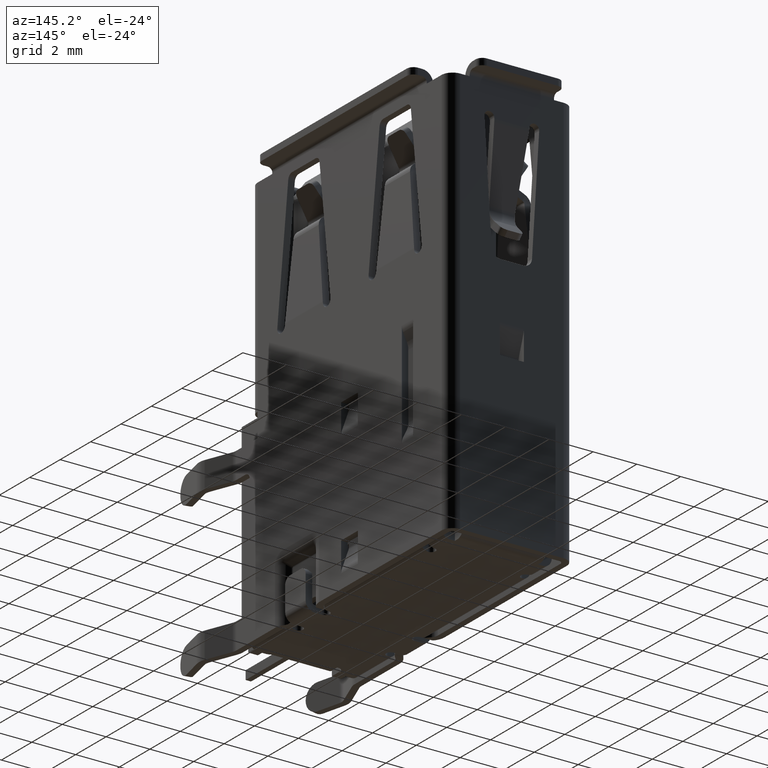
[diagram: clean part render]
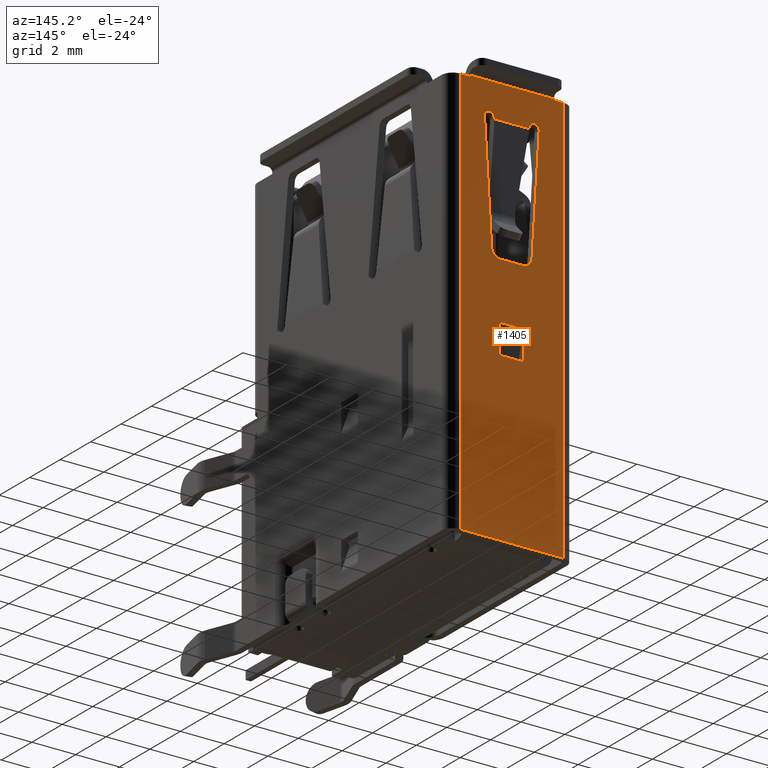
[diagram: same view with one face highlighted and labeled with its STEP entity id]
A machine part, auxiliary view. The second image highlights one B-rep face of the part: STEP entity #1405.
In plain terms, the highlighted planar face has unit normal (0, 1, 0).
Its self-contained STEP definition (entity closure, byte-faithful):
#413 = CARTESIAN_POINT ( 'NONE',  ( -17.28874646170218554, 6.550000000000000711, -2.059579684895092022 ) ) ;
#924 = LINE ( 'NONE', #15795, #44672 ) ;
#1295 = DIRECTION ( 'NONE',  ( 1.000000000000000000, 0.0000000000000000000, -0.0000000000000000000 ) ) ;
#1379 = AXIS2_PLACEMENT_3D ( 'NONE', #2101, #42379, #34979 ) ;
#1382 = EDGE_CURVE ( 'NONE', #43991, #43664, #44827, .T. ) ;
#1405 = ADVANCED_FACE ( 'NONE', ( #46320, #21565, #29012 ), #31924, .T. ) ;
#1706 = LINE ( 'NONE', #42003, #1767 ) ;
#1767 = VECTOR ( 'NONE', #9638, 1000.000000000000000 ) ;
#2101 = CARTESIAN_POINT ( 'NONE',  ( -11.94999999999999929, 6.550000000000000711, -3.383734963999999845 ) ) ;
#2831 = CARTESIAN_POINT ( 'NONE',  ( -18.69999999826666581, 6.550000000000000711, -0.4999999999689500041 ) ) ;
#2899 = CARTESIAN_POINT ( 'NONE',  ( -17.23915316305506096, 6.550000000000000711, -3.657384770222686488 ) ) ;
#2987 = EDGE_CURVE ( 'NONE', #38281, #17774, #47437, .T. ) ;
#3538 = DIRECTION ( 'NONE',  ( -0.9981319991309048900, 0.0000000000000000000, -0.06109429033013952931 ) ) ;
#3712 = EDGE_CURVE ( 'NONE', #20419, #13761, #33448, .T. ) ;
#4097 = ORIENTED_EDGE ( 'NONE', *, *, #29364, .T. ) ;
#4382 = VERTEX_POINT ( 'NONE', #4787 ) ;
#4787 = CARTESIAN_POINT ( 'NONE',  ( -11.55000000000000071, 6.550000000000000711, -3.383734963826749986 ) ) ;
#5453 = AXIS2_PLACEMENT_3D ( 'NONE', #47025, #39800, #36217 ) ;
#6378 = VERTEX_POINT ( 'NONE', #13318 ) ;
#6996 = ORIENTED_EDGE ( 'NONE', *, *, #1382, .T. ) ;
#7220 = LINE ( 'NONE', #29527, #42000 ) ;
#7386 = CARTESIAN_POINT ( 'NONE',  ( -11.55000000000000071, 6.550000000000000711, -2.860000000000000764 ) ) ;
#7470 = AXIS2_PLACEMENT_3D ( 'NONE', #20321, #8818, #45272 ) ;
#7630 = DIRECTION ( 'NONE',  ( -0.0000000000000000000, 0.0000000000000000000, -1.000000000000000000 ) ) ;
#7678 = EDGE_CURVE ( 'NONE', #4382, #43991, #15046, .T. ) ;
#7832 = EDGE_CURVE ( 'NONE', #19518, #17553, #38059, .T. ) ;
#7912 = CARTESIAN_POINT ( 'NONE',  ( -11.92556216517189860, 6.550000000000000711, -3.782987756387264255 ) ) ;
#8223 = CARTESIAN_POINT ( 'NONE',  ( -17.28874621537276113, 6.550000000000000711, -3.660420300198656829 ) ) ;
#8272 = LINE ( 'NONE', #37763, #11547 ) ;
#8364 = LINE ( 'NONE', #29970, #11912 ) ;
#8481 = VERTEX_POINT ( 'NONE', #24770 ) ;
#8646 = ORIENTED_EDGE ( 'NONE', *, *, #28510, .T. ) ;
#8818 = DIRECTION ( 'NONE',  ( -0.0000000000000000000, -1.000000000000000000, -0.0000000000000000000 ) ) ;
#9638 = DIRECTION ( 'NONE',  ( -1.000000000000000000, -0.0000000000000000000, 0.0000000000000000000 ) ) ;
#9895 = EDGE_CURVE ( 'NONE', #42435, #8481, #42726, .T. ) ;
#9989 = VERTEX_POINT ( 'NONE', #10806 ) ;
#10078 = CARTESIAN_POINT ( 'NONE',  ( -17.26125371788325680, 6.550000000000000711, -4.109579695991167014 ) ) ;
#10585 = DIRECTION ( 'NONE',  ( -0.9981319811049911284, 0.0000000000000000000, 0.06109458482898021819 ) ) ;
#10806 = CARTESIAN_POINT ( 'NONE',  ( -8.950983718586000393, 6.550000000000000711, -2.309999999879937427 ) ) ;
#11436 = ORIENTED_EDGE ( 'NONE', *, *, #9895, .T. ) ;
#11488 = EDGE_CURVE ( 'NONE', #43215, #42435, #40187, .T. ) ;
#11498 = DIRECTION ( 'NONE',  ( 1.000000000000000000, 0.0000000000000000000, -0.0000000000000000000 ) ) ;
#11547 = VECTOR ( 'NONE', #1295, 1000.000000000000000 ) ;
#11759 = CARTESIAN_POINT ( 'NONE',  ( 0.0000000000000000000, 6.550000000000000711, -2.860000000000000764 ) ) ;
#11912 = VECTOR ( 'NONE', #19166, 1000.000000000000000 ) ;
#11938 = ORIENTED_EDGE ( 'NONE', *, *, #40040, .T. ) ;
#12601 = ORIENTED_EDGE ( 'NONE', *, *, #38320, .T. ) ;
#13197 = DIRECTION ( 'NONE',  ( -0.0000000000000000000, -1.000000000000000000, -0.0000000000000000000 ) ) ;
#13318 = CARTESIAN_POINT ( 'NONE',  ( -17.26125371693493094, 6.550000000000000711, -1.610420304272583758 ) ) ;
#13356 = VECTOR ( 'NONE', #7630, 1000.000000000000000 ) ;
#13438 = ORIENTED_EDGE ( 'NONE', *, *, #36271, .F. ) ;
#13628 = CARTESIAN_POINT ( 'NONE',  ( -18.69999999843999916, 6.550000000000000711, -5.220000000187999589 ) ) ;
#13710 = CARTESIAN_POINT ( 'NONE',  ( -17.28874628362309096, 6.550000000000000711, -2.059579695689964129 ) ) ;
#13761 = VERTEX_POINT ( 'NONE', #10078 ) ;
#13857 = EDGE_CURVE ( 'NONE', #6378, #43215, #13889, .T. ) ;
#13889 = CIRCLE ( 'NONE', #5453, 0.2249999999999999500 ) ;
#14380 = DIRECTION ( 'NONE',  ( 0.0000000000000000000, -0.0000000000000000000, 1.000000000000000000 ) ) ;
#14638 = VECTOR ( 'NONE', #33539, 1000.000000000000000 ) ;
#14697 = CARTESIAN_POINT ( 'NONE',  ( -18.75000000001000089, 6.550000000000000711, -0.9350000000799998379 ) ) ;
#14746 = ORIENTED_EDGE ( 'NONE', *, *, #7832, .T. ) ;
#15046 = LINE ( 'NONE', #7386, #14638 ) ;
#15325 = CARTESIAN_POINT ( 'NONE',  ( -7.599999999566041886, 6.550000000000000711, -2.309999999839875251 ) ) ;
#15469 = ORIENTED_EDGE ( 'NONE', *, *, #26775, .T. ) ;
#15795 = CARTESIAN_POINT ( 'NONE',  ( -9.375000000000000000, 6.550000000000000711, -0.9350000000799998379 ) ) ;
#16337 = ORIENTED_EDGE ( 'NONE', *, *, #13857, .T. ) ;
#16412 = DIRECTION ( 'NONE',  ( -1.000000000000000000, -0.0000000000000000000, 0.0000000000000000000 ) ) ;
#16462 = VECTOR ( 'NONE', #23114, 1000.000000000000000 ) ;
#16771 = CARTESIAN_POINT ( 'NONE',  ( -9.375000000000000000, 6.550000000000000711, -2.309999999839875251 ) ) ;
#16991 = EDGE_CURVE ( 'NONE', #17682, #23793, #17394, .T. ) ;
#17274 = VERTEX_POINT ( 'NONE', #38633 ) ;
#17394 = LINE ( 'NONE', #36750, #18597 ) ;
#17553 = VERTEX_POINT ( 'NONE', #15325 ) ;
#17682 = VERTEX_POINT ( 'NONE', #35936 ) ;
#17773 = LINE ( 'NONE', #31951, #19921 ) ;
#17774 = VERTEX_POINT ( 'NONE', #2831 ) ;
#18241 = EDGE_CURVE ( 'NONE', #13761, #37857, #19988, .T. ) ;
#18597 = VECTOR ( 'NONE', #24809, 1000.000000000000000 ) ;
#19166 = DIRECTION ( 'NONE',  ( 0.0000000000000000000, -0.0000000000000000000, 1.000000000000000000 ) ) ;
#19364 = CARTESIAN_POINT ( 'NONE',  ( -17.23915316684813348, 6.550000000000000711, -2.860000000000000764 ) ) ;
#19518 = VERTEX_POINT ( 'NONE', #36010 ) ;
#19556 = AXIS2_PLACEMENT_3D ( 'NONE', #46072, #13197, #27835 ) ;
#19921 = VECTOR ( 'NONE', #10585, 1000.000000000000227 ) ;
#19988 = LINE ( 'NONE', #31507, #33273 ) ;
#20084 = EDGE_CURVE ( 'NONE', #42768, #29535, #24071, .T. ) ;
#20321 = CARTESIAN_POINT ( 'NONE',  ( -17.27499999999999858, 6.550000000000000711, -3.884999999999999787 ) ) ;
#20419 = VERTEX_POINT ( 'NONE', #8223 ) ;
#21019 = DIRECTION ( 'NONE',  ( 0.0000000000000000000, 0.0000000000000000000, 1.000000000000000000 ) ) ;
#21565 = FACE_BOUND ( 'NONE', #32557, .T. ) ;
#22063 = CARTESIAN_POINT ( 'NONE',  ( -11.55000000000000071, 6.550000000000000711, -2.336265036540000395 ) ) ;
#22545 = DIRECTION ( 'NONE',  ( 1.000000000000000000, 0.0000000000000000000, -0.0000000000000000000 ) ) ;
#22633 = VECTOR ( 'NONE', #16412, 1000.000000000000000 ) ;
#22669 = EDGE_LOOP ( 'NONE', ( #23246, #4097, #46713, #29397, #15469, #43518, #12601, #13438 ) ) ;
#22708 = CARTESIAN_POINT ( 'NONE',  ( -7.599999999479250867, 6.550000000000000711, -2.860000000000000764 ) ) ;
#23114 = DIRECTION ( 'NONE',  ( -0.0000000000000000000, 0.0000000000000000000, -1.000000000000000000 ) ) ;
#23231 = CARTESIAN_POINT ( 'NONE',  ( -17.27499999999999858, 6.550000000000000711, -1.610000000000000098 ) ) ;
#23246 = ORIENTED_EDGE ( 'NONE', *, *, #20084, .T. ) ;
#23793 = VERTEX_POINT ( 'NONE', #14697 ) ;
#24071 = LINE ( 'NONE', #45203, #22633 ) ;
#24457 = EDGE_CURVE ( 'NONE', #17553, #9989, #31658, .T. ) ;
#24770 = CARTESIAN_POINT ( 'NONE',  ( -17.23915316818497701, 6.550000000000000711, -2.062615316356586792 ) ) ;
#24809 = DIRECTION ( 'NONE',  ( 0.0000000000000000000, -0.0000000000000000000, 1.000000000000000000 ) ) ;
#25323 = EDGE_CURVE ( 'NONE', #17274, #19518, #7220, .T. ) ;
#25468 = ORIENTED_EDGE ( 'NONE', *, *, #24457, .T. ) ;
#25852 = LINE ( 'NONE', #19364, #13356 ) ;
#26296 = ORIENTED_EDGE ( 'NONE', *, *, #11488, .T. ) ;
#26317 = DIRECTION ( 'NONE',  ( 0.0000000000000000000, -0.0000000000000000000, 1.000000000000000000 ) ) ;
#26775 = EDGE_CURVE ( 'NONE', #23793, #38281, #924, .T. ) ;
#27006 = EDGE_CURVE ( 'NONE', #41877, #20419, #32098, .T. ) ;
#27239 = CARTESIAN_POINT ( 'NONE',  ( -18.69999999884444719, 6.550000000025000269, -4.784999999975307894 ) ) ;
#27750 = ORIENTED_EDGE ( 'NONE', *, *, #18241, .T. ) ;
#27835 = DIRECTION ( 'NONE',  ( 4.336808689942017736E-15, 0.0000000000000000000, 1.000000000000000000 ) ) ;
#28235 = CARTESIAN_POINT ( 'NONE',  ( -17.27499999999999858, 6.550000000000000711, -1.834999999999999964 ) ) ;
#28333 = DIRECTION ( 'NONE',  ( 0.9981318836651256188, 0.0000000000000000000, -0.06109617673069272364 ) ) ;
#28488 = CARTESIAN_POINT ( 'NONE',  ( -17.23915316385122409, 6.550000000000000711, -3.657384777551747401 ) ) ;
#28510 = EDGE_CURVE ( 'NONE', #9989, #17274, #41346, .T. ) ;
#28675 = CARTESIAN_POINT ( 'NONE',  ( -5.030698080332740574E-14, 6.550000000000000711, -5.220000000187999589 ) ) ;
#29012 = FACE_BOUND ( 'NONE', #29267, .T. ) ;
#29267 = EDGE_LOOP ( 'NONE', ( #6996, #11938, #16337, #26296, #11436, #46340, #29996, #35396, #27750, #29875, #32040 ) ) ;
#29364 = EDGE_CURVE ( 'NONE', #29535, #35704, #8364, .T. ) ;
#29397 = ORIENTED_EDGE ( 'NONE', *, *, #16991, .T. ) ;
#29527 = CARTESIAN_POINT ( 'NONE',  ( -9.375000000000000000, 6.550000000000000711, -3.410000000106666818 ) ) ;
#29535 = VERTEX_POINT ( 'NONE', #13628 ) ;
#29875 = ORIENTED_EDGE ( 'NONE', *, *, #34365, .T. ) ;
#29915 = DIRECTION ( 'NONE',  ( 0.0000000000000000000, -0.0000000000000000000, 1.000000000000000000 ) ) ;
#29970 = CARTESIAN_POINT ( 'NONE',  ( -18.69999999791999912, 6.550000000000000711, -2.860000000000000764 ) ) ;
#29996 = ORIENTED_EDGE ( 'NONE', *, *, #27006, .T. ) ;
#30043 = CARTESIAN_POINT ( 'NONE',  ( -11.92556216577936290, 6.550000000000000711, -1.937012243893612817 ) ) ;
#30266 = AXIS2_PLACEMENT_3D ( 'NONE', #28235, #42850, #21019 ) ;
#31507 = CARTESIAN_POINT ( 'NONE',  ( -17.26125371734888603, 6.550000000000000711, -4.109579695956780299 ) ) ;
#31658 = LINE ( 'NONE', #16771, #35054 ) ;
#31924 = PLANE ( 'NONE',  #42523 ) ;
#31951 = CARTESIAN_POINT ( 'NONE',  ( -11.92556216549031589, 6.550000000000000711, -1.937012244229221913 ) ) ;
#32040 = ORIENTED_EDGE ( 'NONE', *, *, #7678, .T. ) ;
#32098 = LINE ( 'NONE', #28488, #45465 ) ;
#32557 = EDGE_LOOP ( 'NONE', ( #14746, #25468, #8646, #45151 ) ) ;
#33240 = CARTESIAN_POINT ( 'NONE',  ( -18.69999999930666590, 6.550000000011111823, -0.9350000000799998379 ) ) ;
#33254 = VERTEX_POINT ( 'NONE', #39426 ) ;
#33273 = VECTOR ( 'NONE', #35118, 1000.000000000000114 ) ;
#33284 = CARTESIAN_POINT ( 'NONE',  ( -18.69999999861333251, 6.550000000000000711, -2.860000000000000764 ) ) ;
#33448 = CIRCLE ( 'NONE', #7470, 0.2249999999999999500 ) ;
#33539 = DIRECTION ( 'NONE',  ( 0.0000000000000000000, -0.0000000000000000000, 1.000000000000000000 ) ) ;
#33831 = VECTOR ( 'NONE', #26317, 1000.000000000000000 ) ;
#33931 = CARTESIAN_POINT ( 'NONE',  ( -8.950983718172002668, 6.550000000000000711, -2.860000000000000764 ) ) ;
#34068 = DIRECTION ( 'NONE',  ( -0.0000000000000000000, -0.0000000000000000000, 1.000000000000000000 ) ) ;
#34365 = EDGE_CURVE ( 'NONE', #37857, #4382, #45049, .T. ) ;
#34370 = VECTOR ( 'NONE', #34068, 1000.000000000000000 ) ;
#34979 = DIRECTION ( 'NONE',  ( 0.0000000000000000000, 0.0000000000000000000, 1.000000000000000000 ) ) ;
#35054 = VECTOR ( 'NONE', #42673, 1000.000000000000000 ) ;
#35118 = DIRECTION ( 'NONE',  ( 0.9981319811107107753, 0.0000000000000000000, 0.06109458473553747160 ) ) ;
#35396 = ORIENTED_EDGE ( 'NONE', *, *, #3712, .T. ) ;
#35704 = VERTEX_POINT ( 'NONE', #27239 ) ;
#35936 = CARTESIAN_POINT ( 'NONE',  ( -18.75000000001000089, 6.550000000025000269, -4.785000000000000142 ) ) ;
#36010 = CARTESIAN_POINT ( 'NONE',  ( -7.599999999652832905, 6.550000000000000711, -3.410000000177777935 ) ) ;
#36217 = DIRECTION ( 'NONE',  ( 1.387778780781445928E-13, 0.0000000000000000000, 1.000000000000000000 ) ) ;
#36271 = EDGE_CURVE ( 'NONE', #42768, #33254, #45569, .T. ) ;
#36750 = CARTESIAN_POINT ( 'NONE',  ( -18.75000000002000178, 6.550000000000000711, -2.860000000000000764 ) ) ;
#37763 = CARTESIAN_POINT ( 'NONE',  ( -9.375000000000000000, 6.550000000000000711, -0.4999999999378999527 ) ) ;
#37857 = VERTEX_POINT ( 'NONE', #7912 ) ;
#38059 = LINE ( 'NONE', #22708, #33831 ) ;
#38281 = VERTEX_POINT ( 'NONE', #33240 ) ;
#38320 = EDGE_CURVE ( 'NONE', #17774, #33254, #8272, .T. ) ;
#38633 = CARTESIAN_POINT ( 'NONE',  ( -8.950983718586000393, 6.550000000000000711, -3.410000000053333480 ) ) ;
#39092 = DIRECTION ( 'NONE',  ( 0.0000000000000000000, 1.000000000000000000, 0.0000000000000000000 ) ) ;
#39426 = CARTESIAN_POINT ( 'NONE',  ( -5.030698080332740574E-14, 6.550000000000000711, -0.4999999999689500041 ) ) ;
#39800 = DIRECTION ( 'NONE',  ( -0.0000000000000000000, -1.000000000000000000, -0.0000000000000000000 ) ) ;
#40040 = EDGE_CURVE ( 'NONE', #43664, #6378, #17773, .T. ) ;
#40187 = CIRCLE ( 'NONE', #30266, 0.2249999999999999500 ) ;
#41346 = LINE ( 'NONE', #33931, #16462 ) ;
#41874 = VECTOR ( 'NONE', #29915, 1000.000000000000000 ) ;
#41877 = VERTEX_POINT ( 'NONE', #2899 ) ;
#42000 = VECTOR ( 'NONE', #22545, 1000.000000000000000 ) ;
#42003 = CARTESIAN_POINT ( 'NONE',  ( -18.97500000000000142, 6.550000000049998938, -4.785000000000000142 ) ) ;
#42379 = DIRECTION ( 'NONE',  ( -0.0000000000000000000, -1.000000000000000000, -0.0000000000000000000 ) ) ;
#42435 = VERTEX_POINT ( 'NONE', #413 ) ;
#42523 = AXIS2_PLACEMENT_3D ( 'NONE', #42694, #39092, #14380 ) ;
#42673 = DIRECTION ( 'NONE',  ( -1.000000000000000000, -0.0000000000000000000, 0.0000000000000000000 ) ) ;
#42694 = CARTESIAN_POINT ( 'NONE',  ( -9.375000000000000000, 6.550000000000000711, -2.860000000000000764 ) ) ;
#42726 = LINE ( 'NONE', #13710, #46269 ) ;
#42768 = VERTEX_POINT ( 'NONE', #28675 ) ;
#42850 = DIRECTION ( 'NONE',  ( -0.0000000000000000000, -1.000000000000000000, -0.0000000000000000000 ) ) ;
#43215 = VERTEX_POINT ( 'NONE', #23231 ) ;
#43518 = ORIENTED_EDGE ( 'NONE', *, *, #2987, .T. ) ;
#43664 = VERTEX_POINT ( 'NONE', #30043 ) ;
#43822 = EDGE_CURVE ( 'NONE', #35704, #17682, #1706, .T. ) ;
#43991 = VERTEX_POINT ( 'NONE', #22063 ) ;
#44486 = EDGE_CURVE ( 'NONE', #8481, #41877, #25852, .T. ) ;
#44672 = VECTOR ( 'NONE', #11498, 1000.000000000000000 ) ;
#44827 = CIRCLE ( 'NONE', #19556, 0.3999999999999999667 ) ;
#45049 = CIRCLE ( 'NONE', #1379, 0.4000000000000001887 ) ;
#45151 = ORIENTED_EDGE ( 'NONE', *, *, #25323, .T. ) ;
#45203 = CARTESIAN_POINT ( 'NONE',  ( -9.375000000000000000, 6.550000000000000711, -5.220000000376000315 ) ) ;
#45272 = DIRECTION ( 'NONE',  ( 1.541976423090495476E-14, 0.0000000000000000000, 1.000000000000000000 ) ) ;
#45465 = VECTOR ( 'NONE', #3538, 1000.000000000000000 ) ;
#45569 = LINE ( 'NONE', #11759, #34370 ) ;
#46072 = CARTESIAN_POINT ( 'NONE',  ( -11.94999999999999929, 6.550000000000000711, -2.336265035999999906 ) ) ;
#46269 = VECTOR ( 'NONE', #28333, 1000.000000000000227 ) ;
#46320 = FACE_OUTER_BOUND ( 'NONE', #22669, .T. ) ;
#46340 = ORIENTED_EDGE ( 'NONE', *, *, #44486, .T. ) ;
#46713 = ORIENTED_EDGE ( 'NONE', *, *, #43822, .T. ) ;
#47025 = CARTESIAN_POINT ( 'NONE',  ( -17.27499999999999858, 6.550000000000000711, -1.834999999999999964 ) ) ;
#47437 = LINE ( 'NONE', #33284, #41874 ) ;